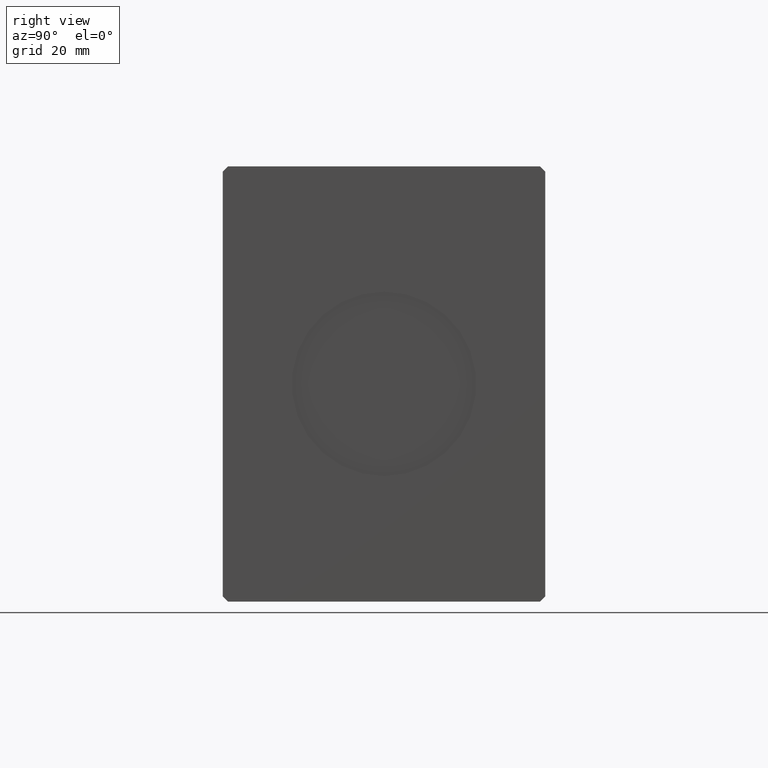
[diagram: clean part render]
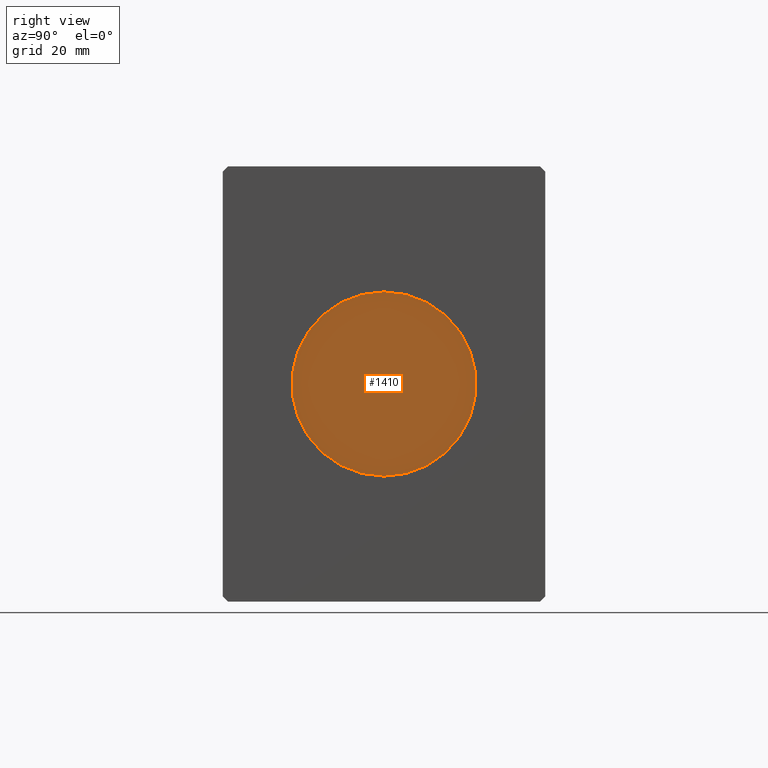
[diagram: same view with one face highlighted and labeled with its STEP entity id]
A machine part, right view. The second image highlights one B-rep face of the part: STEP entity #1410.
In plain terms, the highlighted planar face has unit normal (1, 0, 0).
Its self-contained STEP definition (entity closure, byte-faithful):
#1410 = ADVANCED_FACE ( 'NONE', ( #3482 ), #34768, .T. ) ;
#1681 = VERTEX_POINT ( 'NONE', #25205 ) ;
#2890 = EDGE_CURVE ( 'NONE', #39350, #1681, #19062, .T. ) ;
#3482 = FACE_OUTER_BOUND ( 'NONE', #9525, .T. ) ;
#4096 = CARTESIAN_POINT ( 'NONE',  ( 95.79999999999999716, 0.000000000000000000, 0.000000000000000000 ) ) ;
#6822 = EDGE_CURVE ( 'NONE', #1681, #39350, #9889, .T. ) ;
#9122 = AXIS2_PLACEMENT_3D ( 'NONE', #27620, #18105, #40237 ) ;
#9525 = EDGE_LOOP ( 'NONE', ( #34608, #38555 ) ) ;
#9889 = CIRCLE ( 'NONE', #38966, 18.00000000000000000 ) ;
#11845 = CARTESIAN_POINT ( 'NONE',  ( 95.79999999999999716, 0.000000000000000000, 0.000000000000000000 ) ) ;
#13711 = AXIS2_PLACEMENT_3D ( 'NONE', #4096, #28974, #31654 ) ;
#15155 = DIRECTION ( 'NONE',  ( 1.000000000000000000, 0.000000000000000000, 0.000000000000000000 ) ) ;
#18105 = DIRECTION ( 'NONE',  ( 1.000000000000000000, 0.000000000000000000, 0.000000000000000000 ) ) ;
#19062 = CIRCLE ( 'NONE', #9122, 18.00000000000000000 ) ;
#21375 = DIRECTION ( 'NONE',  ( 0.000000000000000000, 0.000000000000000000, -1.000000000000000000 ) ) ;
#25205 = CARTESIAN_POINT ( 'NONE',  ( 95.79999999999999716, 0.000000000000000000, -18.00000000000000000 ) ) ;
#27620 = CARTESIAN_POINT ( 'NONE',  ( 95.79999999999999716, 0.000000000000000000, 0.000000000000000000 ) ) ;
#28974 = DIRECTION ( 'NONE',  ( 1.000000000000000000, 0.000000000000000000, 0.000000000000000000 ) ) ;
#31654 = DIRECTION ( 'NONE',  ( 0.000000000000000000, 0.000000000000000000, -1.000000000000000000 ) ) ;
#34608 = ORIENTED_EDGE ( 'NONE', *, *, #6822, .T. ) ;
#34768 = PLANE ( 'NONE',  #13711 ) ;
#38294 = CARTESIAN_POINT ( 'NONE',  ( 95.79999999999999716, 2.204364238465235428E-15, 18.00000000000000000 ) ) ;
#38555 = ORIENTED_EDGE ( 'NONE', *, *, #2890, .T. ) ;
#38966 = AXIS2_PLACEMENT_3D ( 'NONE', #11845, #15155, #21375 ) ;
#39350 = VERTEX_POINT ( 'NONE', #38294 ) ;
#40237 = DIRECTION ( 'NONE',  ( 0.000000000000000000, 0.000000000000000000, -1.000000000000000000 ) ) ;